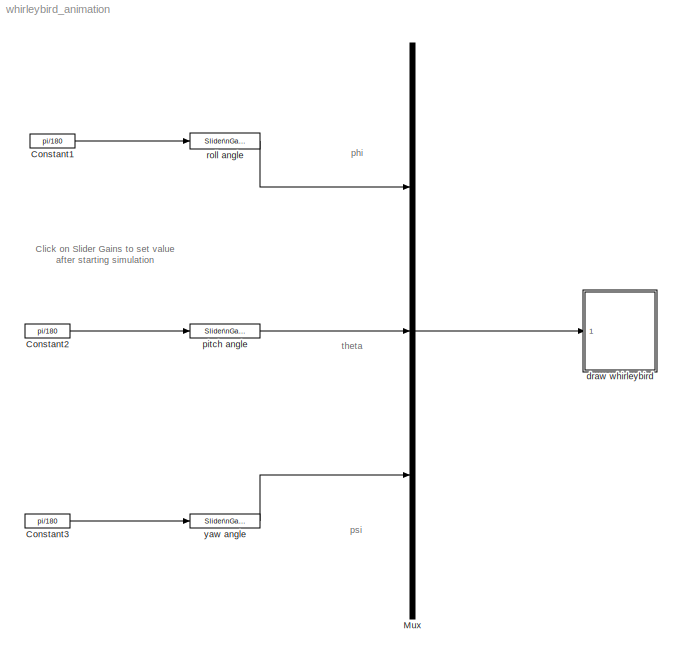
MODEL whirleybird_animation
KIND model
BLOCK [Constant] Constant1
  SID = 1
  Value = pi/180
BLOCK [Constant] Constant2
  SID = 5
  Value = pi/180
BLOCK [Constant] Constant3
  SID = 6
  Value = pi/180
BLOCK [Mux] Mux
  DisplayOption = bar
  Inputs = 3
  Ports = [3, 1]
  SID = 15
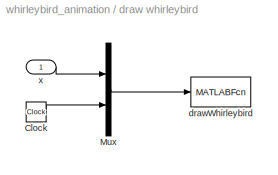
BLOCK [SubSystem] draw whirleybird
  Ports = [1]
  RequestExecContextInheritance = off
  SID = 17
BLOCK [Clock] draw whirleybird/Clock
  SID = 19
BLOCK [Mux] draw whirleybird/Mux
  DisplayOption = bar
  Inputs = 2
  Ports = [2, 1]
  SID = 20
BLOCK [MATLABFcn] draw whirleybird/drawWhirleybird
  MATLABFcn = drawWhirleybird(u)
  OutputDimensions = 0
  Ports = [1]
  SID = 21
  SampleTime = 0.1
BLOCK [Inport] draw whirleybird/x
  IconDisplay = Port number
  SID = 18
BLOCK [Reference] pitch angle  REF=simulink/Math\nOperations/Slider\nGain
  Ports = [1, 1]
  SID = 22
  SourceBlock = simulink/Math\nOperations/Slider\nGain
  SourceType = Slider Gain
  gain = -7.2
  high = 180
  low = -180
BLOCK [Reference] roll angle  REF=simulink/Math\nOperations/Slider\nGain
  Ports = [1, 1]
  SID = 23
  SourceBlock = simulink/Math\nOperations/Slider\nGain
  SourceType = Slider Gain
  gain = -72
  high = 180
  low = -180
BLOCK [Reference] yaw angle   REF=simulink/Math\nOperations/Slider\nGain
  Ports = [1, 1]
  SID = 24
  SourceBlock = simulink/Math\nOperations/Slider\nGain
  SourceType = Slider Gain
  gain = 28.8
  high = 180
  low = -180
ANNOTATION (root): Click on Slider Gains to set value \nafter starting simulation
ANNOTATION (root): phi
ANNOTATION (root): psi
ANNOTATION (root): theta
LINE Constant1:1 -> roll angle:1
LINE Constant2:1 -> pitch angle:1
LINE Constant3:1 -> yaw angle :1
LINE Mux:1 -> draw whirleybird:1
LINE draw whirleybird/Clock:1 -> draw whirleybird/Mux:2
LINE draw whirleybird/Mux:1 -> draw whirleybird/drawWhirleybird:1
LINE draw whirleybird/x:1 -> draw whirleybird/Mux:1
LINE pitch angle:1 -> Mux:2
LINE roll angle:1 -> Mux:1
LINE yaw angle :1 -> Mux:3
